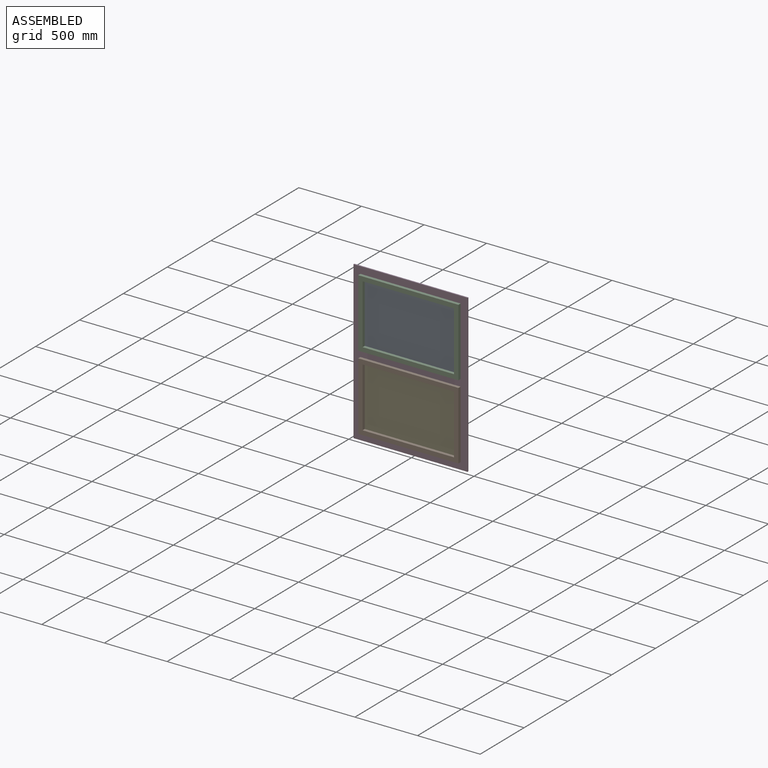
[diagram: assembled view]
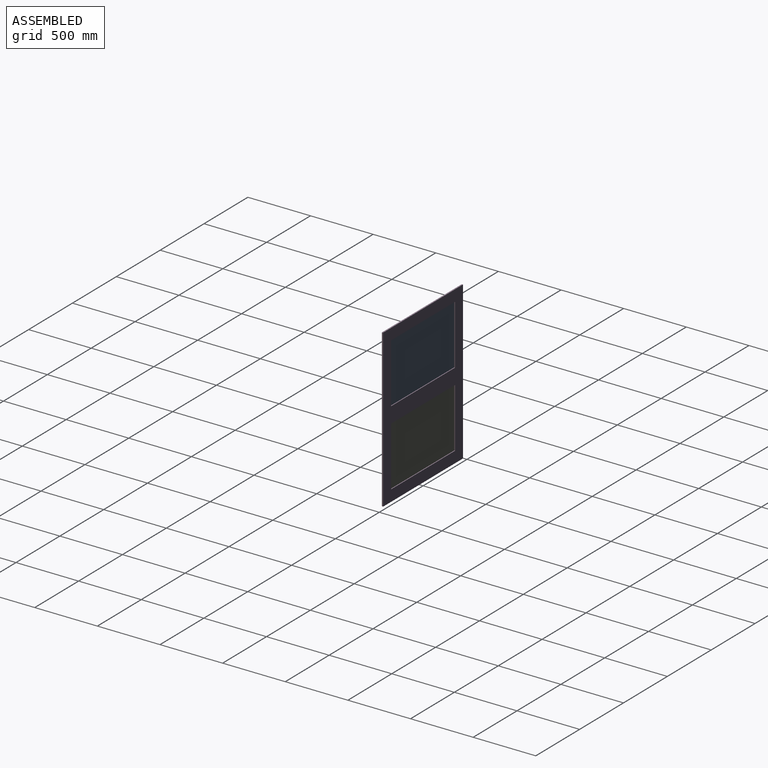
[diagram: assembled view, second angle]
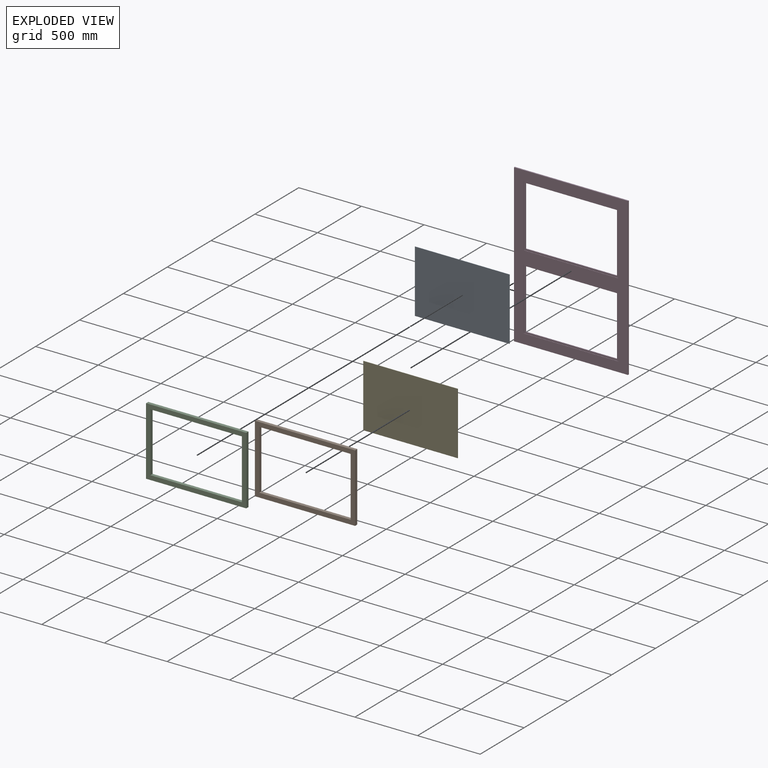
[diagram: exploded view]
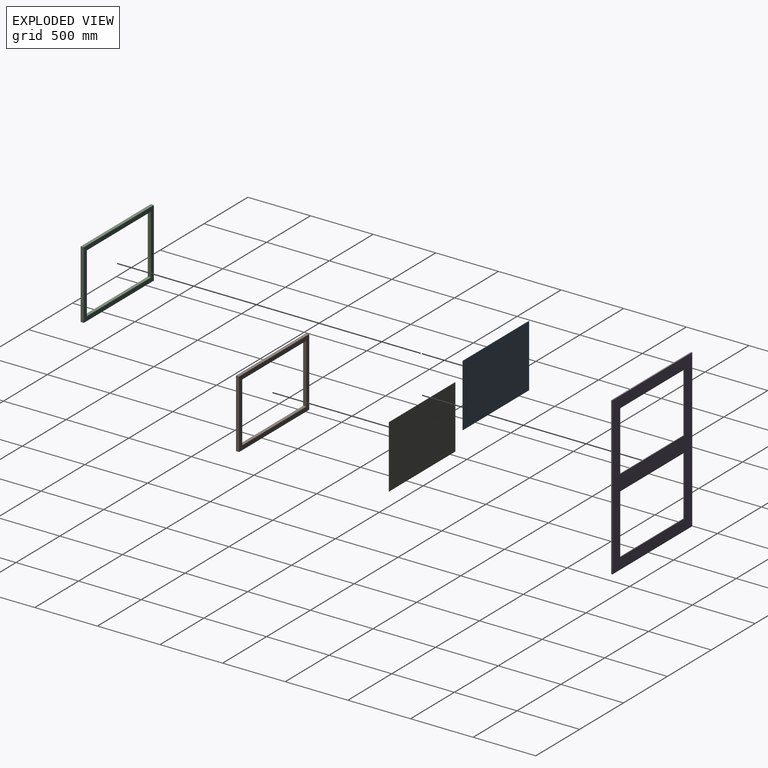
[diagram: exploded view, second angle]
ASSEMBLY  parts=5 mates=4
PART A: 6 faces, bbox 755x3x500 mm
  f0: plane 500x3mm, normal (1,0,0), area 1500mm2, adj f1,f3,f4,f5
  f1: plane 755x3mm, normal (0,0,1), area 2265mm2, adj f0,f2,f4,f5
  f2: plane 500x3mm, normal (-1,0,0), area 1500mm2, adj f1,f3,f4,f5
  f3: plane 755x3mm, normal (0,0,-1), area 2265mm2, adj f0,f2,f4,f5
  f4: plane 755x500mm, normal (0,-1,0), area 377500mm2, adj f0,f1,f2,f3
  f5: plane 755x500mm, normal (0,1,0), area 377500mm2, adj f0,f1,f2,f3
PART B: 10 faces, bbox 800x25x545 mm
  f0: plane 475x25mm, normal (1,0,0), area 11875mm2, adj f1,f7,f8,f9
  f1: plane 730x25mm, normal (0,0,-1), area 18250mm2, adj f0,f2,f8,f9
  f2: plane 475x25mm, normal (-1,0,0), area 11875mm2, adj f1,f7,f8,f9
  f3: plane 545x25mm, normal (1,0,0), area 13625mm2, adj f4,f6,f8,f9
  f4: plane 800x25mm, normal (0,0,1), area 20000mm2, adj f3,f5,f8,f9
  f5: plane 545x25mm, normal (-1,0,0), area 13625mm2, adj f4,f6,f8,f9
  f6: plane 800x25mm, normal (0,0,-1), area 20000mm2, adj f3,f5,f8,f9
  f7: plane 730x25mm, normal (0,0,1), area 18250mm2, adj f0,f2,f8,f9
  f8: plane 800x545mm, normal (0,-1,0), area 89250mm2, adj f0,f1,f2,f3,f4,f5,f6,f7
  f9: plane 800x545mm, normal (0,1,0), area 89250mm2, adj f0,f1,f2,f3,f4,f5,f6,f7
PART C: same geometry as B
PART D: 24 faces, bbox 910x10x1255 mm
  f0: plane 730x7mm, normal (0,0,-1), area 5110mm2, adj f1,f7,f13,f23
  f1: plane 475x7mm, normal (-1,0,0), area 3325mm2, adj f0,f2,f13,f23
  f2: plane 730x7mm, normal (0,0,1), area 5110mm2, adj f1,f7,f13,f23
  f3: plane 475x7mm, normal (-1,0,0), area 3325mm2, adj f4,f6,f13,f18
  f4: plane 730x7mm, normal (0,0,1), area 5110mm2, adj f3,f5,f13,f18
  f5: plane 475x7mm, normal (1,0,0), area 3325mm2, adj f4,f6,f13,f18
  f6: plane 730x7mm, normal (0,0,-1), area 5110mm2, adj f3,f5,f13,f18
  f7: plane 475x7mm, normal (1,0,0), area 3325mm2, adj f0,f2,f13,f23
  f8: plane 1255x910mm, normal (0,-1,0), area 387050mm2, adj f9,f10,f11,f12,f14,f15,f16,f17
  f9: plane 1255x10mm, normal (1,0,0), area 12550mm2, adj f8,f10,f12,f13
  f10: plane 910x10mm, normal (0,0,1), area 9100mm2, adj f8,f9,f11,f13
  f11: plane 1255x10mm, normal (-1,0,0), area 12550mm2, adj f8,f10,f12,f13
  f12: plane 910x10mm, normal (0,0,-1), area 9100mm2, adj f8,f9,f11,f13
  f13: plane 1255x910mm, normal (0,1,0), area 448550mm2, adj f0,f1,f2,f3,f4,f5,f6,f7
  f14: plane 755x3mm, normal (0,0,-1), area 2265mm2, adj f8,f15,f17,f18
  f15: plane 500x3mm, normal (1,0,0), area 1500mm2, adj f8,f14,f16,f18
  f16: plane 755x3mm, normal (0,0,1), area 2265mm2, adj f8,f15,f17,f18
  f17: plane 500x3mm, normal (-1,0,0), area 1500mm2, adj f8,f14,f16,f18
  f18: plane 755x500mm, normal (0,-1,0), area 30750mm2, adj f3,f4,f5,f6,f14,f15,f16,f17
  f19: plane 755x3mm, normal (0,0,-1), area 2265mm2, adj f8,f20,f22,f23
  f20: plane 500x3mm, normal (1,0,0), area 1500mm2, adj f8,f19,f21,f23
  f21: plane 755x3mm, normal (0,0,1), area 2265mm2, adj f8,f20,f22,f23
  f22: plane 500x3mm, normal (-1,0,0), area 1500mm2, adj f8,f19,f21,f23
  f23: plane 755x500mm, normal (0,-1,0), area 30750mm2, adj f0,f1,f2,f7,f19,f20,f21,f22
PART E: same geometry as A
PLACE A t=(0,-7,300)mm
PLACE B t=(0,0,-600)mm
PLACE C at identity
PLACE D at identity fixed
PLACE E t=(0,-7,-300)mm
MATE fastened B.f9 <-> D.f8  axis (0,1,0) through (0,-10,-572.5)mm
MATE fastened E.f5 <-> D.f18  axis (0,1,0) through (377.5,-7,-50)mm
MATE fastened A.f5 <-> D.f23  axis (0,1,0) through (377.5,-7,550)mm
MATE fastened C.f9 <-> D.f8  axis (0,1,0) through (0,-10,572.5)mm
